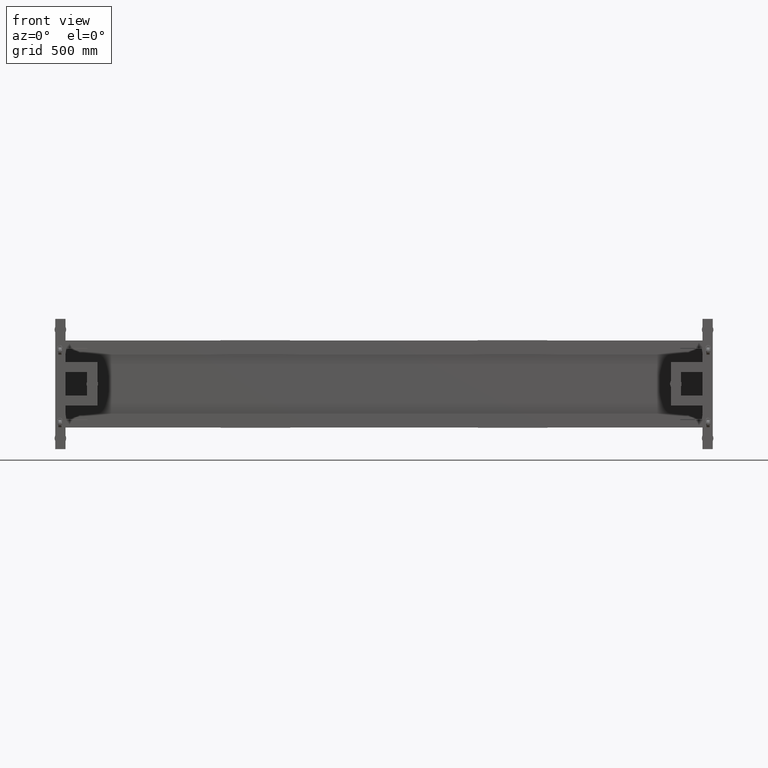
[diagram: clean part render]
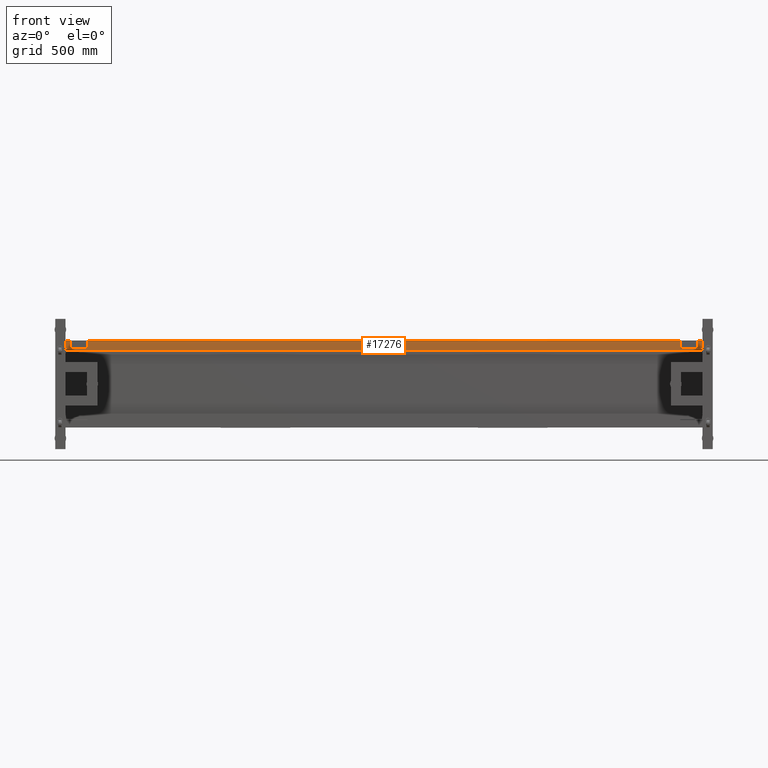
[diagram: same view with one face highlighted and labeled with its STEP entity id]
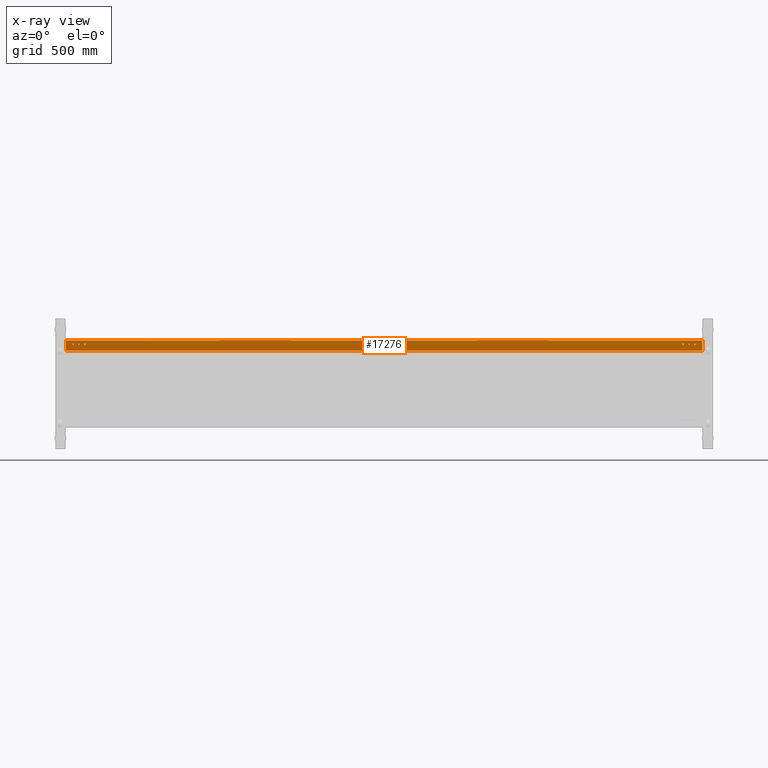
[diagram: x-ray of the same camera — body ghosted, the highlighted face saturated]
A machine part, front view. The second image highlights one B-rep face of the part: STEP entity #17276.
The next image is the same camera in x-ray: the body ghosted, the highlighted face saturated — about 0% of this face is hidden behind the body in this view.
In plain terms, the highlighted planar face has unit normal (0, 1, 0).
Its self-contained STEP definition (entity closure, byte-faithful):
#938 = DIRECTION ( 'NONE',  ( -1.000000000000000000, 0.000000000000000000, 0.000000000000000000 ) ) ;
#2242 = EDGE_LOOP ( 'NONE', ( #5254, #58748 ) ) ;
#2365 = EDGE_CURVE ( 'NONE', #12435, #30571, #44310, .T. ) ;
#2376 = CARTESIAN_POINT ( 'NONE',  ( 3082.827512562816082, 486.9410804020116075, 274.9999999999998863 ) ) ;
#2665 = CIRCLE ( 'NONE', #47138, 4.499999999999948486 ) ;
#3983 = VERTEX_POINT ( 'NONE', #49419 ) ;
#4086 = VERTEX_POINT ( 'NONE', #71477 ) ;
#5166 = ORIENTED_EDGE ( 'NONE', *, *, #31234, .T. ) ;
#5254 = ORIENTED_EDGE ( 'NONE', *, *, #37158, .F. ) ;
#5720 = EDGE_LOOP ( 'NONE', ( #67704, #43255 ) ) ;
#5812 = CIRCLE ( 'NONE', #14959, 4.499999999999726441 ) ;
#5833 = DIRECTION ( 'NONE',  ( -1.000000000000000000, 1.092267369640097868E-16, 0.000000000000000000 ) ) ;
#6317 = CARTESIAN_POINT ( 'NONE',  ( -1266.172487437185964, 486.9410804020109822, 229.9999999999998295 ) ) ;
#6335 = PLANE ( 'NONE',  #43651 ) ;
#6618 = DIRECTION ( 'NONE',  ( 1.000000000000000000, 0.000000000000000000, 0.000000000000000000 ) ) ;
#6722 = DIRECTION ( 'NONE',  ( 1.000000000000000000, 0.000000000000000000, 0.000000000000000000 ) ) ;
#7115 = CARTESIAN_POINT ( 'NONE',  ( 3078.327512562816082, 486.9410804020116075, 274.9999999999998863 ) ) ;
#8507 = ORIENTED_EDGE ( 'NONE', *, *, #60903, .T. ) ;
#8689 = CARTESIAN_POINT ( 'NONE',  ( -1266.172487437185964, 486.9410804020108117, 299.9999999999998863 ) ) ;
#9111 = CIRCLE ( 'NONE', #11720, 4.499999999999726441 ) ;
#9260 = CARTESIAN_POINT ( 'NONE',  ( -1266.172487437185964, 486.9410804020109822, 229.9999999999998295 ) ) ;
#9532 = AXIS2_PLACEMENT_3D ( 'NONE', #17937, #75190, #42911 ) ;
#11624 = VERTEX_POINT ( 'NONE', #6317 ) ;
#11720 = AXIS2_PLACEMENT_3D ( 'NONE', #66975, #80036, #23974 ) ;
#12013 = DIRECTION ( 'NONE',  ( 0.000000000000000000, -1.000000000000000000, -2.999999999999999839E-15 ) ) ;
#12351 = DIRECTION ( 'NONE',  ( -3.450989802914125775E-16, 1.000000000000000000, 2.999999999999999839E-15 ) ) ;
#12435 = VERTEX_POINT ( 'NONE', #49802 ) ;
#12469 = FACE_BOUND ( 'NONE', #2242, .T. ) ;
#12621 = EDGE_CURVE ( 'NONE', #30571, #11624, #65720, .T. ) ;
#14307 = EDGE_CURVE ( 'NONE', #75300, #75938, #17022, .T. ) ;
#14538 = AXIS2_PLACEMENT_3D ( 'NONE', #25441, #12351, #6618 ) ;
#14609 = CARTESIAN_POINT ( 'NONE',  ( 3129.827512562816537, 486.9410804020117780, 229.9999999999998295 ) ) ;
#14959 = AXIS2_PLACEMENT_3D ( 'NONE', #7115, #32080, #6722 ) ;
#17022 = CIRCLE ( 'NONE', #73200, 4.499999999999948486 ) ;
#17276 = ADVANCED_FACE ( 'NONE', ( #24753, #61588, #49717, #43570, #68522, #12469, #37428 ), #6335, .F. ) ;
#17542 = AXIS2_PLACEMENT_3D ( 'NONE', #35163, #52784, #27836 ) ;
#17937 = CARTESIAN_POINT ( 'NONE',  ( 3038.327512562816537, 486.9410804020115506, 274.9999999999998863 ) ) ;
#19641 = VERTEX_POINT ( 'NONE', #34193 ) ;
#19783 = DIRECTION ( 'NONE',  ( -1.000000000000000000, 1.092267369640097868E-16, 0.000000000000000000 ) ) ;
#22523 = ORIENTED_EDGE ( 'NONE', *, *, #46455, .F. ) ;
#22777 = EDGE_CURVE ( 'NONE', #75938, #75300, #69187, .T. ) ;
#23046 = VERTEX_POINT ( 'NONE', #37691 ) ;
#23974 = DIRECTION ( 'NONE',  ( 1.000000000000000000, 0.000000000000000000, 0.000000000000000000 ) ) ;
#24753 = FACE_OUTER_BOUND ( 'NONE', #59701, .T. ) ;
#25441 = CARTESIAN_POINT ( 'NONE',  ( 3038.327512562816537, 486.9410804020115506, 274.9999999999998863 ) ) ;
#25874 = VECTOR ( 'NONE', #19783, 1000.000000000000000 ) ;
#26139 = VERTEX_POINT ( 'NONE', #2376 ) ;
#26380 = EDGE_CURVE ( 'NONE', #19641, #32137, #56954, .T. ) ;
#27485 = DIRECTION ( 'NONE',  ( 0.000000000000000000, -1.000000000000000000, -2.999999999999999839E-15 ) ) ;
#27836 = DIRECTION ( 'NONE',  ( -1.000000000000000000, 0.000000000000000000, 0.000000000000000000 ) ) ;
#28013 = DIRECTION ( 'NONE',  ( -3.450989802914125775E-16, 1.000000000000000000, 2.999999999999999839E-15 ) ) ;
#28560 = ORIENTED_EDGE ( 'NONE', *, *, #26380, .T. ) ;
#28850 = CIRCLE ( 'NONE', #58880, 4.499999999999948486 ) ;
#29065 = CIRCLE ( 'NONE', #74768, 4.499999999999948486 ) ;
#29081 = DIRECTION ( 'NONE',  ( -1.000000000000000000, 0.000000000000000000, 0.000000000000000000 ) ) ;
#29735 = ORIENTED_EDGE ( 'NONE', *, *, #75692, .T. ) ;
#29950 = CIRCLE ( 'NONE', #33885, 4.499999999999726441 ) ;
#30137 = ORIENTED_EDGE ( 'NONE', *, *, #22777, .F. ) ;
#30402 = CARTESIAN_POINT ( 'NONE',  ( -1134.672487437185964, 486.9410804020108117, 274.9999999999998863 ) ) ;
#30571 = VERTEX_POINT ( 'NONE', #8689 ) ;
#30775 = AXIS2_PLACEMENT_3D ( 'NONE', #80624, #41108, #48054 ) ;
#31234 = EDGE_CURVE ( 'NONE', #3983, #26139, #9111, .T. ) ;
#31302 = CARTESIAN_POINT ( 'NONE',  ( 2429.827512562815627, 486.9410804020114938, 229.9999999999998295 ) ) ;
#32080 = DIRECTION ( 'NONE',  ( -3.450989802914125775E-16, 1.000000000000000000, 2.999999999999999839E-15 ) ) ;
#32137 = VERTEX_POINT ( 'NONE', #70409 ) ;
#32972 = CARTESIAN_POINT ( 'NONE',  ( -1134.672487437185964, 486.9410804020108117, 274.9999999999998863 ) ) ;
#33128 = EDGE_LOOP ( 'NONE', ( #28560, #43138 ) ) ;
#33160 = ORIENTED_EDGE ( 'NONE', *, *, #2365, .T. ) ;
#33457 = CARTESIAN_POINT ( 'NONE',  ( 3129.827512562816537, 486.9410804020117780, 229.9999999999998295 ) ) ;
#33885 = AXIS2_PLACEMENT_3D ( 'NONE', #47630, #28013, #78319 ) ;
#34061 = EDGE_CURVE ( 'NONE', #51901, #23046, #28850, .T. ) ;
#34193 = CARTESIAN_POINT ( 'NONE',  ( 2993.827512562816537, 486.9410804020115506, 274.9999999999998863 ) ) ;
#34216 = DIRECTION ( 'NONE',  ( 0.000000000000000000, 2.999999999999999839E-15, -1.000000000000000000 ) ) ;
#35163 = CARTESIAN_POINT ( 'NONE',  ( -1214.672487437185964, 486.9410804020108117, 274.9999999999998863 ) ) ;
#35803 = ORIENTED_EDGE ( 'NONE', *, *, #12621, .T. ) ;
#37158 = EDGE_CURVE ( 'NONE', #23046, #51901, #29065, .T. ) ;
#37428 = FACE_BOUND ( 'NONE', #74538, .T. ) ;
#37691 = CARTESIAN_POINT ( 'NONE',  ( -1170.172487437185964, 486.9410804020108117, 274.9999999999998863 ) ) ;
#39460 = DIRECTION ( 'NONE',  ( -1.000000000000000000, 1.092267369640097868E-16, 0.000000000000000000 ) ) ;
#40106 = CARTESIAN_POINT ( 'NONE',  ( -1139.172487437185964, 486.9410804020108117, 274.9999999999998863 ) ) ;
#40557 = DIRECTION ( 'NONE',  ( 0.000000000000000000, -1.000000000000000000, -2.999999999999999839E-15 ) ) ;
#40814 = ORIENTED_EDGE ( 'NONE', *, *, #77571, .T. ) ;
#41108 = DIRECTION ( 'NONE',  ( -3.450989802914125775E-16, 1.000000000000000000, 2.999999999999999839E-15 ) ) ;
#41301 = CARTESIAN_POINT ( 'NONE',  ( 3042.827512562816082, 486.9410804020115506, 274.9999999999998863 ) ) ;
#42911 = DIRECTION ( 'NONE',  ( 1.000000000000000000, 0.000000000000000000, 0.000000000000000000 ) ) ;
#43138 = ORIENTED_EDGE ( 'NONE', *, *, #73459, .T. ) ;
#43255 = ORIENTED_EDGE ( 'NONE', *, *, #51772, .F. ) ;
#43443 = ORIENTED_EDGE ( 'NONE', *, *, #80660, .F. ) ;
#43570 = FACE_BOUND ( 'NONE', #33128, .T. ) ;
#43651 = AXIS2_PLACEMENT_3D ( 'NONE', #31302, #69343, #39460 ) ;
#43953 = LINE ( 'NONE', #57834, #25874 ) ;
#44310 = LINE ( 'NONE', #61899, #76229 ) ;
#44949 = EDGE_CURVE ( 'NONE', #74999, #4086, #52860, .T. ) ;
#46455 = EDGE_CURVE ( 'NONE', #12435, #62449, #76835, .T. ) ;
#47138 = AXIS2_PLACEMENT_3D ( 'NONE', #59776, #40557, #78968 ) ;
#47630 = CARTESIAN_POINT ( 'NONE',  ( 2998.327512562816537, 486.9410804020115506, 274.9999999999998863 ) ) ;
#48054 = DIRECTION ( 'NONE',  ( 1.000000000000000000, 0.000000000000000000, 0.000000000000000000 ) ) ;
#48270 = ORIENTED_EDGE ( 'NONE', *, *, #14307, .F. ) ;
#49419 = CARTESIAN_POINT ( 'NONE',  ( 3073.827512562816082, 486.9410804020116075, 274.9999999999998863 ) ) ;
#49717 = FACE_BOUND ( 'NONE', #55787, .T. ) ;
#49802 = CARTESIAN_POINT ( 'NONE',  ( 3129.827512562816537, 486.9410804020115506, 299.9999999999998863 ) ) ;
#50179 = CARTESIAN_POINT ( 'NONE',  ( -1174.672487437186192, 486.9410804020108117, 274.9999999999998863 ) ) ;
#51772 = EDGE_CURVE ( 'NONE', #4086, #74999, #2665, .T. ) ;
#51901 = VERTEX_POINT ( 'NONE', #73225 ) ;
#52294 = DIRECTION ( 'NONE',  ( -1.035296940874237648E-30, 2.999999999999999839E-15, -1.000000000000000000 ) ) ;
#52784 = DIRECTION ( 'NONE',  ( 0.000000000000000000, -1.000000000000000000, -2.999999999999999839E-15 ) ) ;
#52860 = CIRCLE ( 'NONE', #17542, 4.499999999999948486 ) ;
#54375 = VECTOR ( 'NONE', #52294, 1000.000000000000000 ) ;
#54880 = VECTOR ( 'NONE', #34216, 1000.000000000000000 ) ;
#55381 = CARTESIAN_POINT ( 'NONE',  ( -1130.172487437186192, 486.9410804020108117, 274.9999999999998863 ) ) ;
#55787 = EDGE_LOOP ( 'NONE', ( #29735, #8507 ) ) ;
#56058 = EDGE_LOOP ( 'NONE', ( #5166, #40814 ) ) ;
#56954 = CIRCLE ( 'NONE', #30775, 4.499999999999726441 ) ;
#57400 = CARTESIAN_POINT ( 'NONE',  ( -1210.172487437185964, 486.9410804020108117, 274.9999999999998863 ) ) ;
#57834 = CARTESIAN_POINT ( 'NONE',  ( 2429.827512562815627, 486.9410804020114938, 229.9999999999998295 ) ) ;
#57934 = DIRECTION ( 'NONE',  ( 0.000000000000000000, -1.000000000000000000, -2.999999999999999839E-15 ) ) ;
#58572 = CARTESIAN_POINT ( 'NONE',  ( -1174.672487437186192, 486.9410804020108117, 274.9999999999998863 ) ) ;
#58748 = ORIENTED_EDGE ( 'NONE', *, *, #34061, .F. ) ;
#58880 = AXIS2_PLACEMENT_3D ( 'NONE', #50179, #12013, #938 ) ;
#59304 = CARTESIAN_POINT ( 'NONE',  ( 3033.827512562816082, 486.9410804020115506, 274.9999999999998863 ) ) ;
#59701 = EDGE_LOOP ( 'NONE', ( #43443, #22523, #33160, #35803 ) ) ;
#59776 = CARTESIAN_POINT ( 'NONE',  ( -1214.672487437185964, 486.9410804020108117, 274.9999999999998863 ) ) ;
#60903 = EDGE_CURVE ( 'NONE', #68487, #71616, #72007, .T. ) ;
#61588 = FACE_BOUND ( 'NONE', #56058, .T. ) ;
#61899 = CARTESIAN_POINT ( 'NONE',  ( 2429.827512562815627, 486.9410804020112664, 299.9999999999998863 ) ) ;
#62449 = VERTEX_POINT ( 'NONE', #14609 ) ;
#62862 = DIRECTION ( 'NONE',  ( -1.000000000000000000, 0.000000000000000000, 0.000000000000000000 ) ) ;
#64398 = CIRCLE ( 'NONE', #9532, 4.499999999999726441 ) ;
#65720 = LINE ( 'NONE', #9260, #54880 ) ;
#66445 = DIRECTION ( 'NONE',  ( -1.000000000000000000, 0.000000000000000000, 0.000000000000000000 ) ) ;
#66975 = CARTESIAN_POINT ( 'NONE',  ( 3078.327512562816082, 486.9410804020116075, 274.9999999999998863 ) ) ;
#67704 = ORIENTED_EDGE ( 'NONE', *, *, #44949, .F. ) ;
#67899 = AXIS2_PLACEMENT_3D ( 'NONE', #32972, #57934, #62862 ) ;
#68487 = VERTEX_POINT ( 'NONE', #41301 ) ;
#68522 = FACE_BOUND ( 'NONE', #5720, .T. ) ;
#69187 = CIRCLE ( 'NONE', #67899, 4.499999999999948486 ) ;
#69343 = DIRECTION ( 'NONE',  ( 1.092267369640097868E-16, 1.000000000000000000, 2.999999999999999839E-15 ) ) ;
#70409 = CARTESIAN_POINT ( 'NONE',  ( 3002.827512562816082, 486.9410804020115506, 274.9999999999998863 ) ) ;
#71477 = CARTESIAN_POINT ( 'NONE',  ( -1219.172487437186192, 486.9410804020108117, 274.9999999999998863 ) ) ;
#71616 = VERTEX_POINT ( 'NONE', #59304 ) ;
#72007 = CIRCLE ( 'NONE', #14538, 4.499999999999726441 ) ;
#73200 = AXIS2_PLACEMENT_3D ( 'NONE', #30402, #73756, #66445 ) ;
#73225 = CARTESIAN_POINT ( 'NONE',  ( -1179.172487437185964, 486.9410804020108117, 274.9999999999998863 ) ) ;
#73459 = EDGE_CURVE ( 'NONE', #32137, #19641, #29950, .T. ) ;
#73756 = DIRECTION ( 'NONE',  ( 0.000000000000000000, -1.000000000000000000, -2.999999999999999839E-15 ) ) ;
#74538 = EDGE_LOOP ( 'NONE', ( #30137, #48270 ) ) ;
#74768 = AXIS2_PLACEMENT_3D ( 'NONE', #58572, #27485, #29081 ) ;
#74999 = VERTEX_POINT ( 'NONE', #57400 ) ;
#75190 = DIRECTION ( 'NONE',  ( -3.450989802914125775E-16, 1.000000000000000000, 2.999999999999999839E-15 ) ) ;
#75300 = VERTEX_POINT ( 'NONE', #40106 ) ;
#75692 = EDGE_CURVE ( 'NONE', #71616, #68487, #64398, .T. ) ;
#75938 = VERTEX_POINT ( 'NONE', #55381 ) ;
#76229 = VECTOR ( 'NONE', #5833, 1000.000000000000000 ) ;
#76835 = LINE ( 'NONE', #33457, #54375 ) ;
#77571 = EDGE_CURVE ( 'NONE', #26139, #3983, #5812, .T. ) ;
#78319 = DIRECTION ( 'NONE',  ( 1.000000000000000000, 0.000000000000000000, 0.000000000000000000 ) ) ;
#78968 = DIRECTION ( 'NONE',  ( -1.000000000000000000, 0.000000000000000000, 0.000000000000000000 ) ) ;
#80036 = DIRECTION ( 'NONE',  ( -3.450989802914125775E-16, 1.000000000000000000, 2.999999999999999839E-15 ) ) ;
#80624 = CARTESIAN_POINT ( 'NONE',  ( 2998.327512562816537, 486.9410804020115506, 274.9999999999998863 ) ) ;
#80660 = EDGE_CURVE ( 'NONE', #62449, #11624, #43953, .T. ) ;